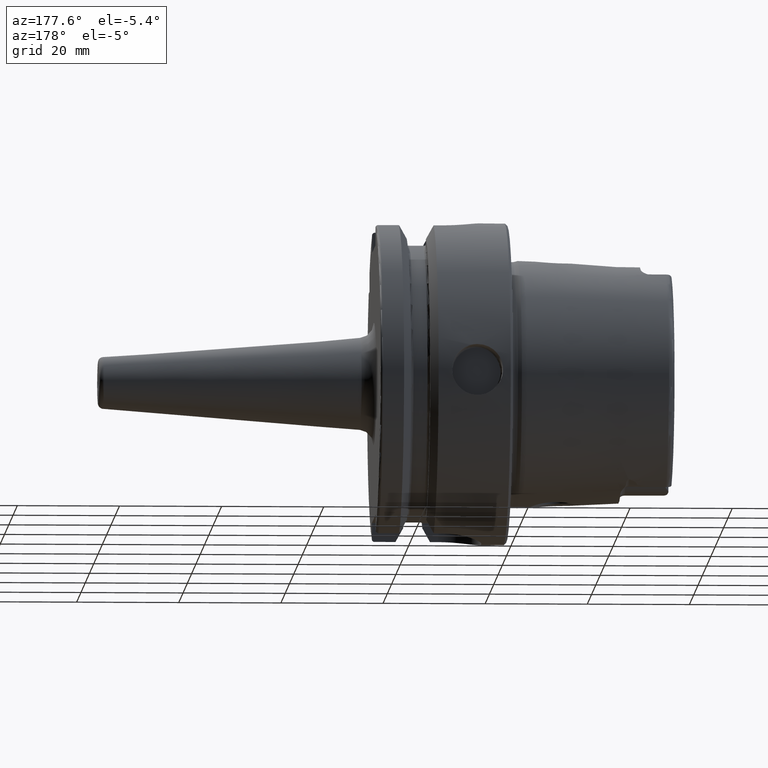
[diagram: clean part render]
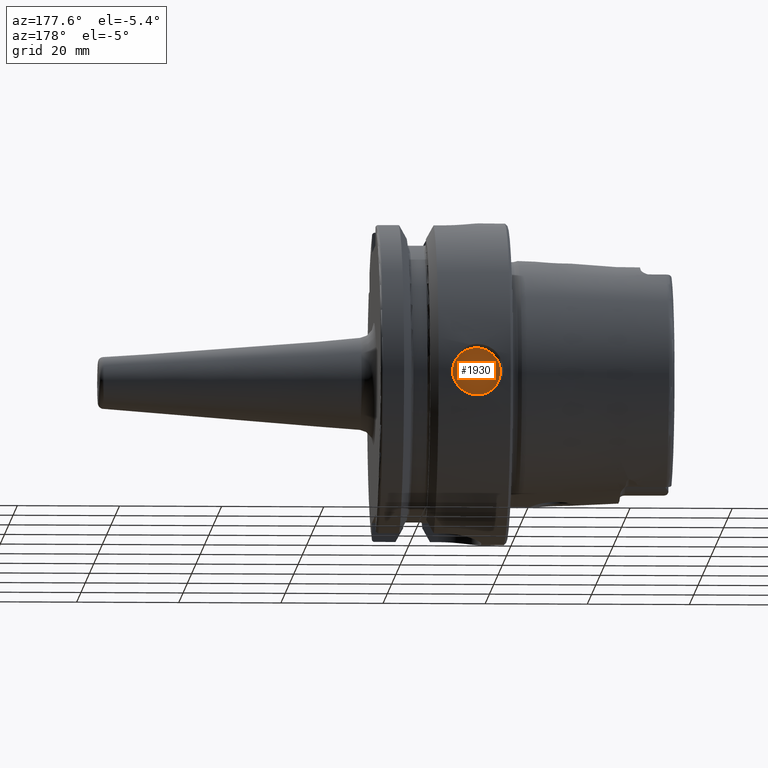
[diagram: same view with one face highlighted and labeled with its STEP entity id]
A machine part, auxiliary view. The second image highlights one B-rep face of the part: STEP entity #1930.
In plain terms, the highlighted planar face has unit normal (0, -1, 0).
Its self-contained STEP definition (entity closure, byte-faithful):
#116=PLANE('',#2118);
#216=FACE_OUTER_BOUND('',#333,.T.);
#333=EDGE_LOOP('',(#1444));
#672=CIRCLE('',#2113,4.7);
#842=VERTEX_POINT('',#3632);
#1069=EDGE_CURVE('',#842,#842,#672,.T.);
#1444=ORIENTED_EDGE('',*,*,#1069,.T.);
#1930=ADVANCED_FACE('',(#216),#116,.F.);
#2113=AXIS2_PLACEMENT_3D('',#3633,#2475,#2476);
#2118=AXIS2_PLACEMENT_3D('',#3679,#2486,#2487);
#2475=DIRECTION('center_axis',(-1.10223326012643E-16,1.,0.));
#2476=DIRECTION('ref_axis',(1.,1.10223326012643E-16,0.));
#2486=DIRECTION('center_axis',(1.10223326012643E-16,-1.,0.));
#2487=DIRECTION('ref_axis',(0.,0.,-1.));
#3632=CARTESIAN_POINT('',(6.99999999999999,26.5,-4.7));
#3633=CARTESIAN_POINT('Origin',(7.,26.5,0.));
#3679=CARTESIAN_POINT('Origin',(2.3,26.5,0.));